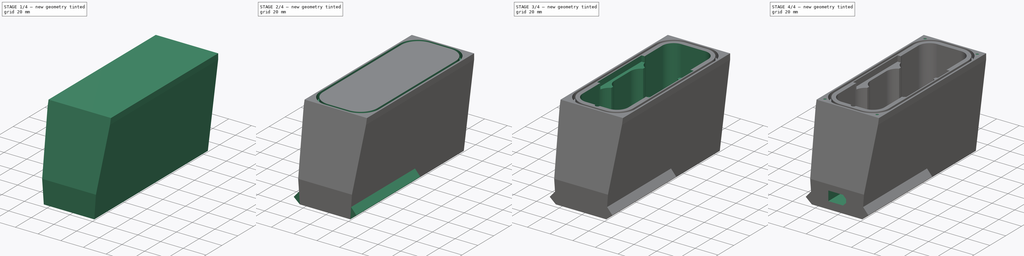
[diagram: build sequence overview — one tinted view per stage of 4, left to right]
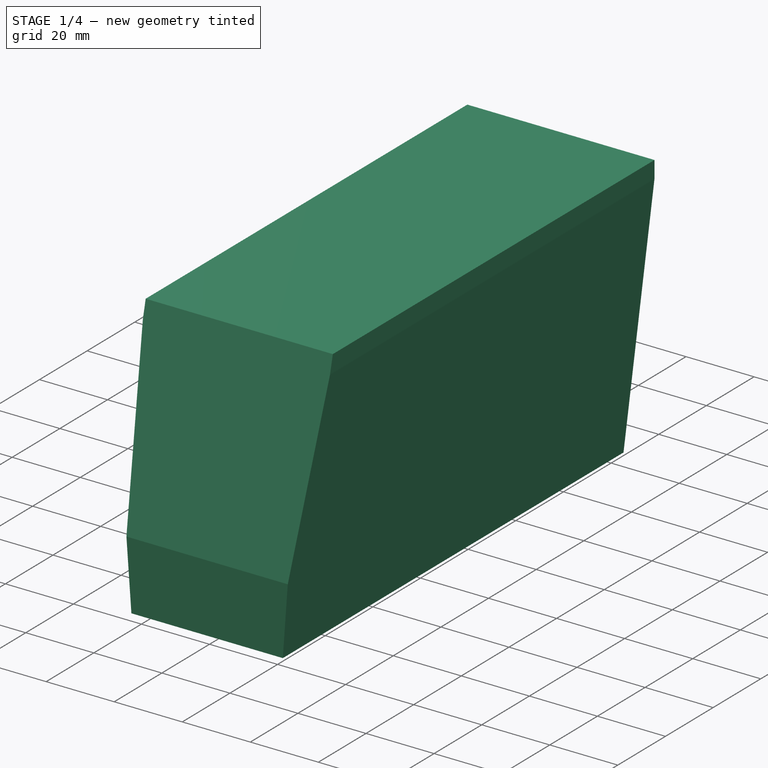
[diagram: stage 1 of 4 — iso view after this stage's code; geometry added in this stage tinted green]
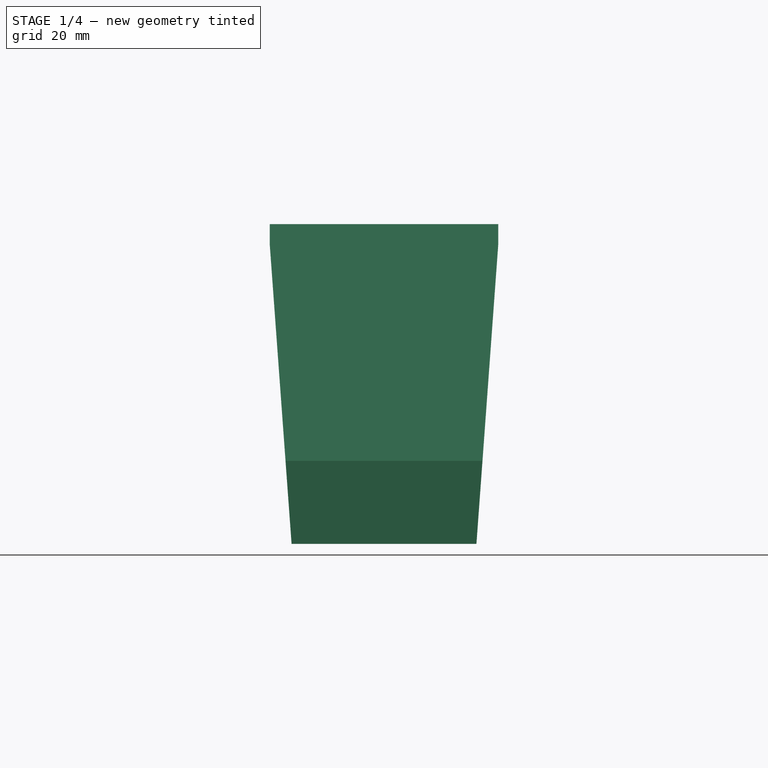
[diagram: stage 1 of 4 — front view after this stage's code; geometry added in this stage tinted green]
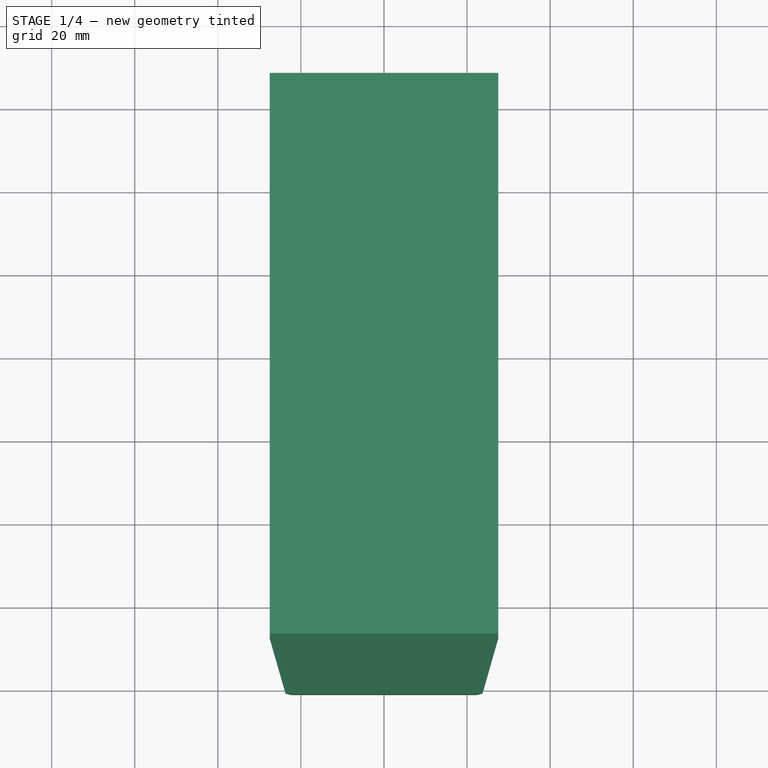
[diagram: stage 1 of 4 — top view after this stage's code; geometry added in this stage tinted green]
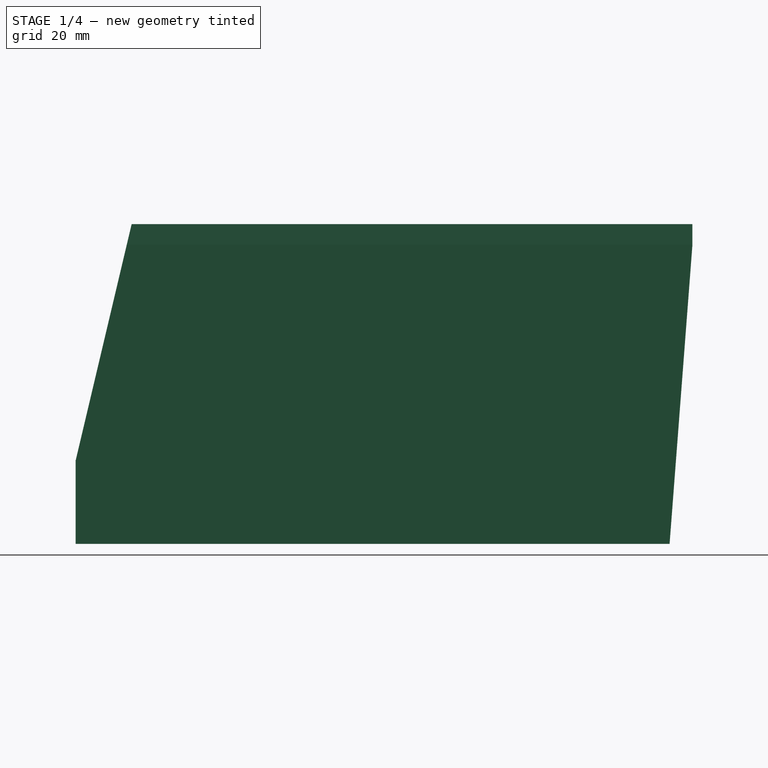
[diagram: stage 1 of 4 — right view after this stage's code; geometry added in this stage tinted green]
FCSTD DOCUMENT  (FreeCAD 1.1R14555 (Git shallow))
Label: Li-Ion battery pack for bike_SB
License: All rights reserved
LicenseURL: https://en.wikipedia.org/wiki/All_rights_reserved
objects: Sketcher::SketchObject×10, PartDesign::Pocket×5, PartDesign::Pad×4, App::Point×2, PartDesign::Body×2, PartDesign::Mirrored×2, PartDesign::Boolean×1, PartDesign::Hole×1
note: 58 computed .brp shape members not serialized (recipe doc carries the construction recipe); baked Part::Feature solids carry a one-line shape summary decoded from their .brp

FEATURE [App::Point] Origin001
  Role = Origin
FEATURE [Sketcher::SketchObject] Sketch
  ArcFitTolerance = 1e-06
  AttachmentSupport = -> [Origin]
  ExternalTypes = [0]
  FullyConstrained = true
  MakeInternals = false
  MapMode = 5
  Placement = pos=(0,0,0) rot=(1,0,0;1.5708rad)
  sketch-geometry (6):
    g0: LineSegment StartX=-27.5 StartY=0 StartZ=0 EndX=-22.25 EndY=-72 EndZ=0
    g1: LineSegment StartX=-22.25 StartY=-72 StartZ=0 EndX=22.25 EndY=-72 EndZ=0
    g2: LineSegment StartX=22.25 StartY=-72 StartZ=0 EndX=27.5 EndY=0 EndZ=0
    g3: LineSegment StartX=27.5 StartY=0 StartZ=0 EndX=27.5 EndY=5 EndZ=0
    g4: LineSegment StartX=27.5 StartY=5 StartZ=0 EndX=-27.5 EndY=5 EndZ=0
    g5: LineSegment StartX=-27.5 StartY=5 StartZ=0 EndX=-27.5 EndY=0 EndZ=0
  constraints (16):
    c: Coincident(g0,g1)
    c: Coincident(g1,g2)
    c: Symmetric(g2,g0,g-2)
    c: Symmetric(g1,g0,g-2)
    c: DistanceX(g1,g1) = 44.5
    c: DistanceY(g1,g2) = 72
    c: PointOnObject(g2,g-1)
    c: Coincident(g2,g3)
    c: Vertical(g3)
    c: Coincident(g3,g4)
    c: Horizontal(g4)
    c: Coincident(g4,g5)
    c: Coincident(g5,g0)
    c: Vertical(g5)
    c: DistanceX(g4,g4) = 55
    c: DistanceY(g3,g3) = 5
FEATURE [PartDesign::Pad] Pad
  Direction = (0,-1,2e-16)
  Length = 201
  Length2 = 10
  Profile = -> Sketch
  ReferenceAxis = -> Sketch [N_Axis]
  Refine = true
  SideType = 2
  Suppressed = false
  Type = 0
  Type2 = 0
FEATURE [PartDesign::Body] Body
  AllowCompound = false
  Group = -> [Sketch,Pad]
  Origin = -> Origin
  Tip = -> Pad
FEATURE [Sketcher::SketchObject] Sketch001
  ArcFitTolerance = 1e-06
  ExternalTypes = [0]
  FullyConstrained = true
  MakeInternals = false
  MapMode = 5
  Placement = pos=(0,0,0) rot=(0.57735,0.57735,0.57735;2.0944rad)
  sketch-geometry (6):
    g0: LineSegment StartX=-67.5 StartY=5 StartZ=0 EndX=-81 EndY=-52 EndZ=0
    g1: LineSegment StartX=-81 StartY=-52 StartZ=0 EndX=-81 EndY=-72 EndZ=0
    g2: LineSegment StartX=-81 StartY=-72 StartZ=0 EndX=62 EndY=-72 EndZ=0
    g3: LineSegment StartX=62 StartY=-72 StartZ=0 EndX=67.5 EndY=0 EndZ=0
    g4: LineSegment StartX=67.5 StartY=0 StartZ=0 EndX=67.5 EndY=5 EndZ=0
    g5: LineSegment StartX=67.5 StartY=5 StartZ=0 EndX=-67.5 EndY=5 EndZ=0
  constraints (18):
    c: Coincident(g0,g1)
    c: Vertical(g1)
    c: Coincident(g1,g2)
    c: Horizontal(g2)
    c: Coincident(g2,g3)
    c: PointOnObject(g3,g-1)
    c: Coincident(g3,g4)
    c: Coincident(g4,g5)
    c: Coincident(g5,g0)
    c: Horizontal(g5)
    c: DistanceX(g5,g5) = 135
    c: Vertical(g4)
    c: DistanceY(g4,g4) = 5
    c: Distance(g4,g-2) = 67.5
    c: Distance(g3,g2) = 72
    c: DistanceX(g2,g2) = 143
    c: DistanceY(g1,g1) = 20
    c: Distance(g2,g-2) = 62
FEATURE [App::Point] Origin003
  Role = Origin
FEATURE [PartDesign::Pad] Pad001
  Direction = (1,0,0)
  Length = 60
  Length2 = 10
  Placement = pos=(0,0,0) rot=(0.57735,0.57735,0.57735;2.0944rad)
  Profile = -> Sketch001
  ReferenceAxis = -> Sketch001 [N_Axis]
  Refine = true
  SideType = 2
  Suppressed = false
  Type = 0
  Type2 = 0
FEATURE [PartDesign::Boolean] Boolean
  BaseFeature = -> Pad001
  Group = -> [Body]
  Suppressed = false
  Type = 2
  UsePlacement = true
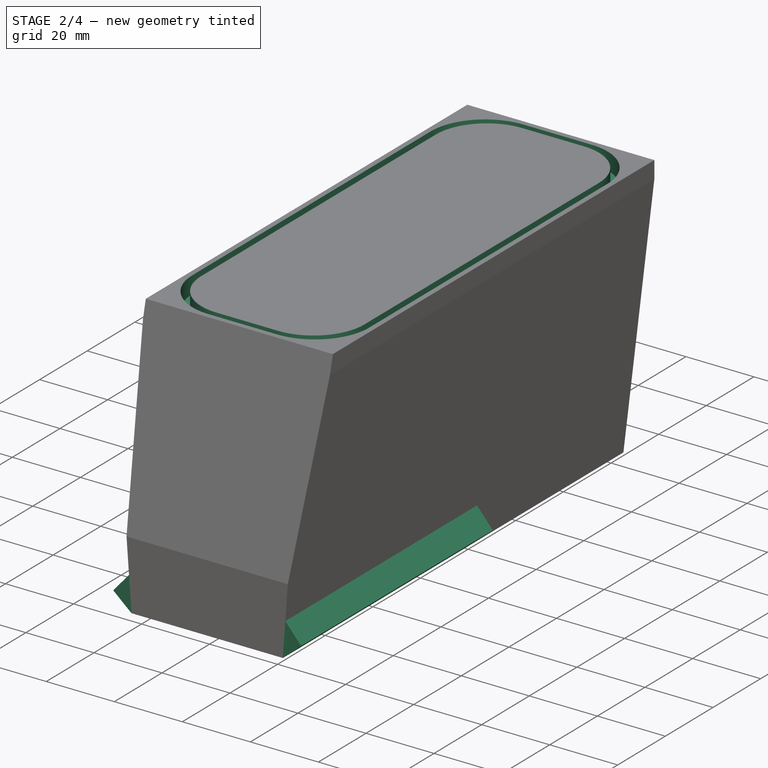
[diagram: stage 2 of 4 — iso view after this stage's code; geometry added in this stage tinted green]
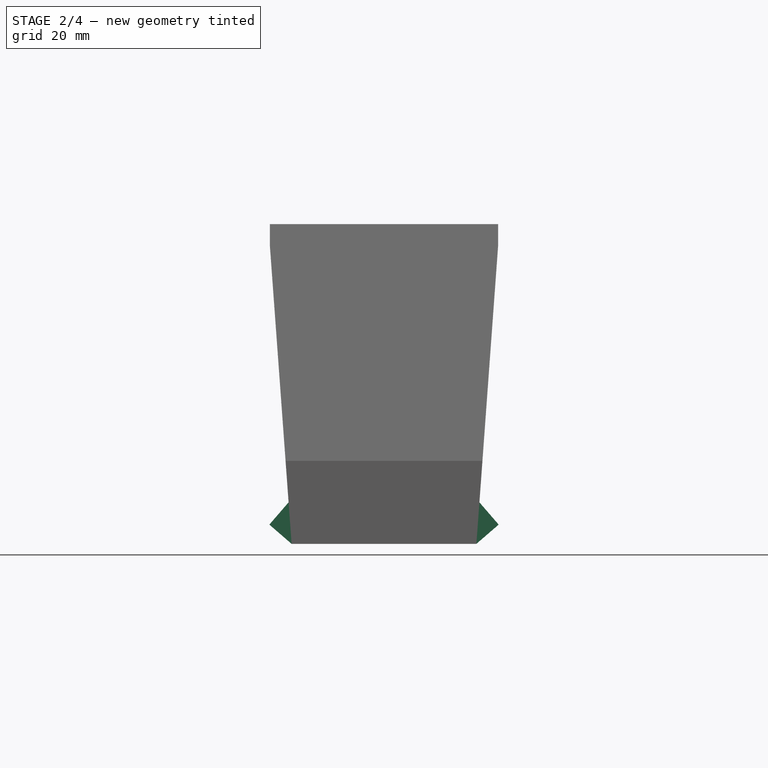
[diagram: stage 2 of 4 — front view after this stage's code; geometry added in this stage tinted green]
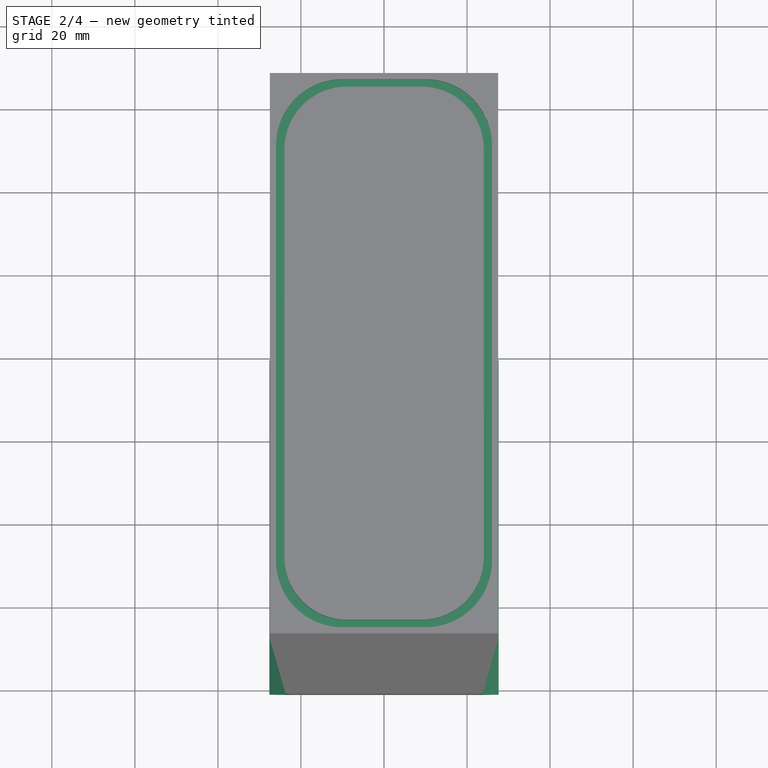
[diagram: stage 2 of 4 — top view after this stage's code; geometry added in this stage tinted green]
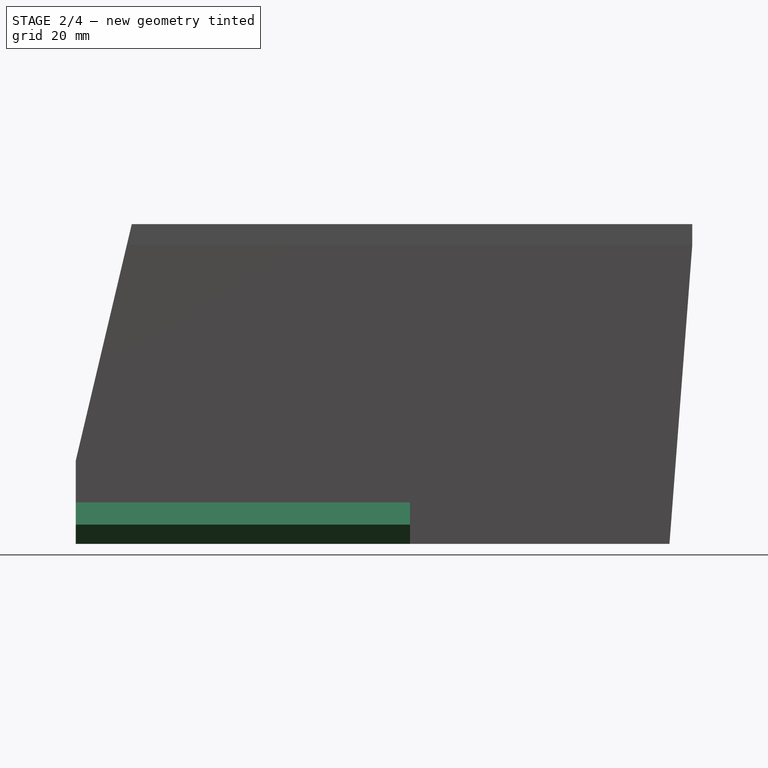
[diagram: stage 2 of 4 — right view after this stage's code; geometry added in this stage tinted green]
FEATURE [Sketcher::SketchObject] Sketch002
  ArcFitTolerance = 1e-06
  AttachmentSupport = -> [Boolean]
  ExternalTypes = [0]
  FullyConstrained = false
  MakeInternals = false
  MapMode = 5
  Placement = pos=(0,0,5) rot=(0,0,1;0rad)
  sketch-geometry (20):
    g0: LineSegment StartX=-26 StartY=50 StartZ=0 EndX=-26 EndY=-50 EndZ=0
    g1: LineSegment StartX=-10 StartY=-66 StartZ=0 EndX=10 EndY=-66 EndZ=0
    g2: LineSegment StartX=26 StartY=-50 StartZ=0 EndX=26 EndY=50 EndZ=0
    g3: LineSegment StartX=10 StartY=66 StartZ=0 EndX=-10 EndY=66 EndZ=0
    g4: ArcOfCircle CenterX=-10 CenterY=50 CenterZ=0 NormalX=0 NormalY=0 NormalZ=1 AngleXU=0 Radius=16 StartAngle=1.5708 EndAngle=3.14159
    g5: ArcOfCircle CenterX=-10 CenterY=-50 CenterZ=0 NormalX=0 NormalY=0 NormalZ=1 AngleXU=0 Radius=16 StartAngle=3.14159 EndAngle=4.71239
    g6: ArcOfCircle CenterX=10 CenterY=-50 CenterZ=0 NormalX=0 NormalY=0 NormalZ=1 AngleXU=0 Radius=16 StartAngle=4.71239 EndAngle=6.28319
    g7: ArcOfCircle CenterX=10 CenterY=50 CenterZ=0 NormalX=0 NormalY=0 NormalZ=1 AngleXU=0 Radius=16 StartAngle=0 EndAngle=1.5708
    g8: GeomPoint [constr] X=-26 Y=66 Z=0
    g9: GeomPoint [constr] X=26 Y=-66 Z=0
    g10: LineSegment StartX=-23.9788 StartY=49.2 StartZ=0 EndX=-23.9788 EndY=-49.2 EndZ=0
    g11: LineSegment StartX=-8.97877 StartY=-64.2 StartZ=0 EndX=9.02123 EndY=-64.2 EndZ=0
    g12: LineSegment StartX=24.0212 StartY=-49.2 StartZ=0 EndX=24.0212 EndY=49.2 EndZ=0
    g13: LineSegment StartX=9.02123 StartY=64.2 StartZ=0 EndX=-8.97877 EndY=64.2 EndZ=0
    g14: ArcOfCircle CenterX=-8.97877 CenterY=49.2 CenterZ=0 NormalX=0 NormalY=0 NormalZ=1 AngleXU=0 Radius=15 StartAngle=1.5708 EndAngle=3.14159
    g15: ArcOfCircle CenterX=-8.97877 CenterY=-49.2 CenterZ=0 NormalX=0 NormalY=0 NormalZ=1 AngleXU=0 Radius=15 StartAngle=3.14159 EndAngle=4.71239
    g16: ArcOfCircle CenterX=9.02123 CenterY=-49.2 CenterZ=0 NormalX=0 NormalY=0 NormalZ=1 AngleXU=0 Radius=15 StartAngle=4.71239 EndAngle=6.28319
    g17: ArcOfCircle CenterX=9.02123 CenterY=49.2 CenterZ=0 NormalX=0 NormalY=0 NormalZ=1 AngleXU=0 Radius=15 StartAngle=0 EndAngle=1.5708
    g18: GeomPoint [constr] X=-23.9788 Y=64.2 Z=0
    g19: GeomPoint [constr] X=24.0212 Y=-64.2 Z=0
  constraints (46):
    c: Tangent(g0,g4) = -1.5708
    c: Tangent(g0,g5) = -1.5708
    c: Tangent(g1,g5) = -1.5708
    c: Tangent(g1,g6) = -1.5708
    c: Tangent(g2,g6) = -1.5708
    c: Tangent(g2,g7) = -1.5708
    c: Tangent(g3,g7) = -1.5708
    c: Tangent(g3,g4) = -1.5708
    c: Vertical(g0)
    c: Vertical(g2)
    c: Horizontal(g1)
    c: Horizontal(g3)
    c: Equal(g4,g5)
    c: PointOnObject(g8,g0)
    c: PointOnObject(g8,g3)
    c: PointOnObject(g9,g1)
    c: PointOnObject(g9,g2)
    c: Radius(g5) = 16
    c: Symmetric(g5,g6,g-2)
    c: Distance(g2,g0) = 52
    c: Distance(g3,g1) = 132
    c: Distance(g-1,g3) = 66
    c: Equal(g7,g4)
    c: Tangent(g10,g14) = -1.5708
    c: Tangent(g10,g15) = -1.5708
    c: Tangent(g11,g15) = -1.5708
    c: Tangent(g11,g16) = -1.5708
    c: Tangent(g12,g16) = -1.5708
    c: Tangent(g12,g17) = -1.5708
    c: Tangent(g13,g17) = -1.5708
    c: Tangent(g13,g14) = -1.5708
    c: Vertical(g10)
    c: Vertical(g12)
    c: Horizontal(g11)
    c: Horizontal(g13)
    c: Equal(g14,g15)
    c: Equal(g15,g16)
    c: Equal(g16,g17)
    c: PointOnObject(g18,g10)
    c: PointOnObject(g18,g13)
    c: PointOnObject(g19,g11)
    c: PointOnObject(g19,g12)
    c: Radius(g15) = 15
    c: Distance(g10,g12) = 48
    c: Distance(g13,g3) = 1.8
    c: Distance(g1,g11) = 1.8
FEATURE [PartDesign::Pocket] Pocket
  BaseFeature = -> Boolean
  Direction = (0,0,-1)
  Length = 5
  Length2 = 5
  Profile = -> Sketch002
  ReferenceAxis = -> Sketch002 [N_Axis]
  Refine = true
  SideType = 0
  Suppressed = false
  Type = 0
  Type2 = 0
FEATURE [Sketcher::SketchObject] Sketch003
  ArcFitTolerance = 1e-06
  AttachmentSupport = -> [Pocket]
  ExternalGeometry = -> [Pocket]
  ExternalTypes = [0]
  FullyConstrained = true
  MakeInternals = false
  MapMode = 5
  Placement = pos=(0,-81,5.75e-14) rot=(1,0,0;1.5708rad)
  sketch-geometry (3):
    g0: LineSegment StartX=-22.25 StartY=-72 StartZ=0 EndX=-27.6146 EndY=-67.3646 EndZ=0
    g1: LineSegment StartX=-27.6146 StartY=-67.3646 StartZ=0 EndX=-22.9792 EndY=-62 EndZ=0
    g2: LineSegment StartX=-22.9792 StartY=-62 StartZ=0 EndX=-22.25 EndY=-72 EndZ=0
  constraints (7):
    c: Coincident(g-3,g0)
    c: Coincident(g0,g1)
    c: Symmetric(g-3,g-3,g1)
    c: Coincident(g1,g2)
    c: Coincident(g2,g0)
    c: Perpendicular(g0,g1)
    c: Angle(g2,g0) = 0.785398
FEATURE [PartDesign::Pad] Pad002
  BaseFeature = -> Pocket
  Direction = (0,-1,2e-16)
  Length = 80.5
  Length2 = 10
  Profile = -> Sketch003
  ReferenceAxis = -> Sketch003 [N_Axis]
  Refine = true
  Reversed = true
  SideType = 0
  Suppressed = false
  Type = 0
  Type2 = 0
FEATURE [PartDesign::Mirrored] Mirrored
  BaseFeature = -> Pad002
  MirrorPlane = -> Sketch003 [V_Axis]
  Originals = -> [Pad002]
  Refine = true
  Suppressed = false
  TransformMode = 0
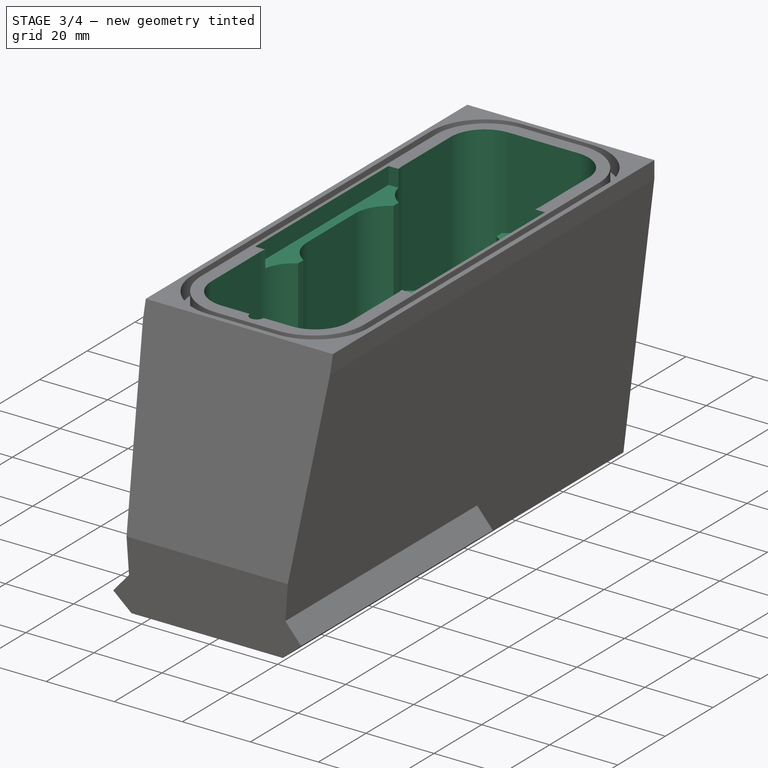
[diagram: stage 3 of 4 — iso view after this stage's code; geometry added in this stage tinted green]
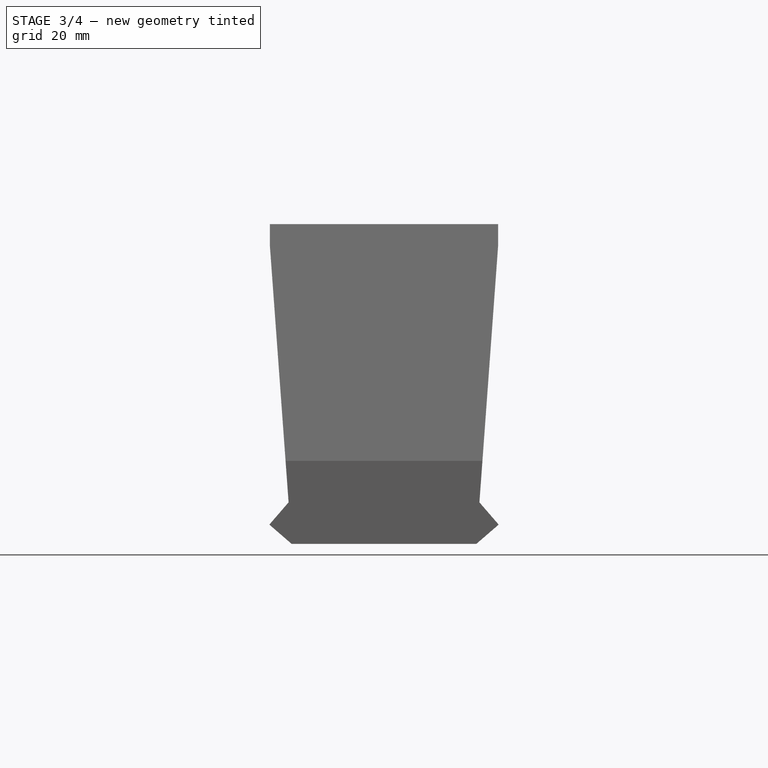
[diagram: stage 3 of 4 — front view after this stage's code; geometry added in this stage tinted green]
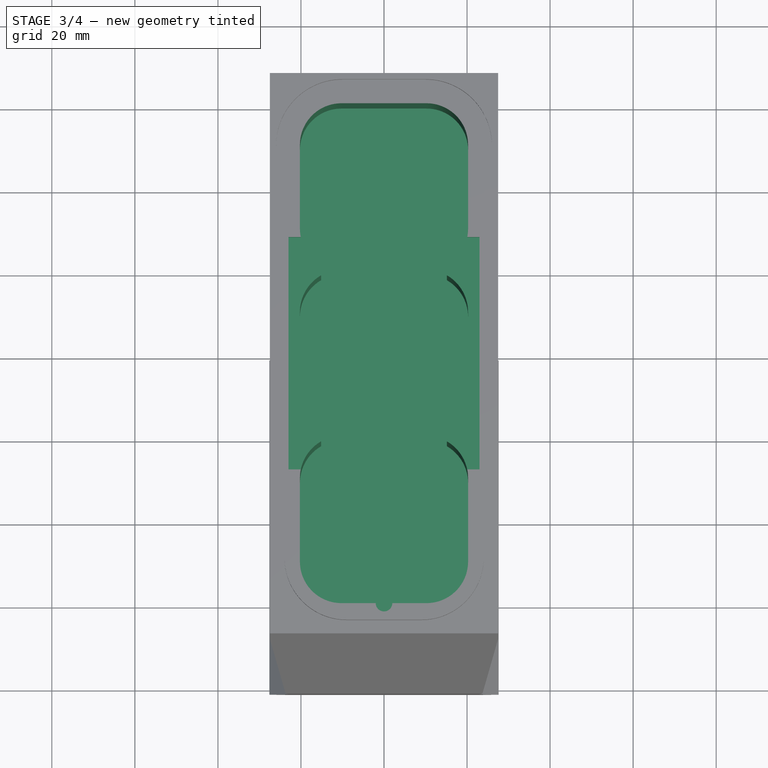
[diagram: stage 3 of 4 — top view after this stage's code; geometry added in this stage tinted green]
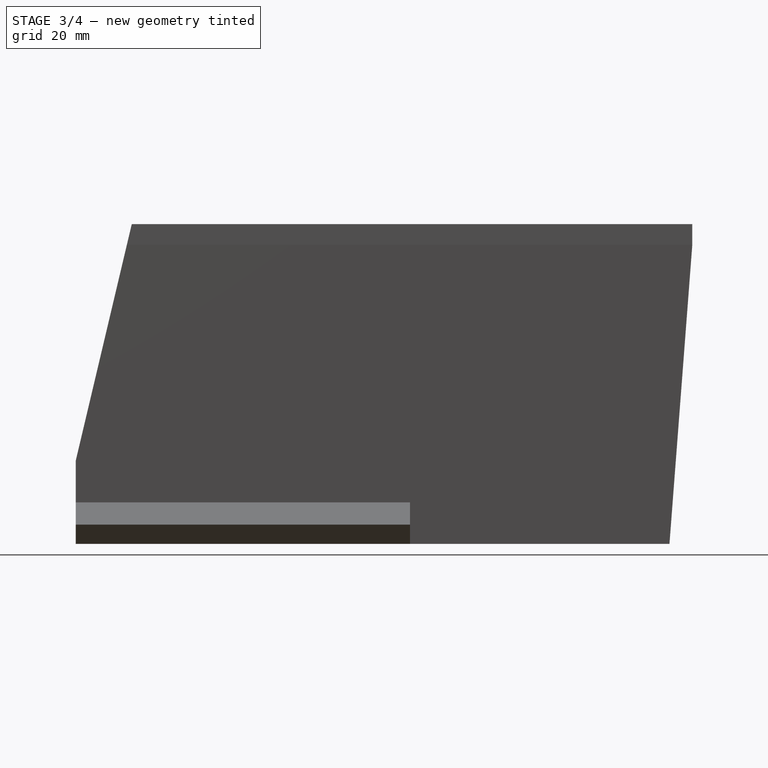
[diagram: stage 3 of 4 — right view after this stage's code; geometry added in this stage tinted green]
FEATURE [Sketcher::SketchObject] Sketch004
  ArcFitTolerance = 1e-06
  AttachmentSupport = -> [Mirrored]
  ExternalTypes = [0]
  FullyConstrained = true
  MakeInternals = false
  MapMode = 5
  Placement = pos=(0,0,5) rot=(0,0,1;0rad)
  sketch-geometry (12):
    g0: LineSegment StartX=-20.25 StartY=50.2 StartZ=0 EndX=-20.25 EndY=-50.2 EndZ=0
    g1: LineSegment StartX=-10.25 StartY=-60.2 StartZ=0 EndX=-2 EndY=-60.2 EndZ=0
    g2: LineSegment StartX=20.25 StartY=-50.2 StartZ=0 EndX=20.25 EndY=50.2 EndZ=0
    g3: LineSegment StartX=10.25 StartY=60.2 StartZ=0 EndX=-10.25 EndY=60.2 EndZ=0
    g4: ArcOfCircle CenterX=-10.25 CenterY=50.2 CenterZ=0 NormalX=0 NormalY=0 NormalZ=1 AngleXU=0 Radius=10 StartAngle=1.5708 EndAngle=3.14159
    g5: ArcOfCircle CenterX=-10.25 CenterY=-50.2 CenterZ=0 NormalX=0 NormalY=0 NormalZ=1 AngleXU=0 Radius=10 StartAngle=3.14159 EndAngle=4.71239
    g6: ArcOfCircle CenterX=10.25 CenterY=-50.2 CenterZ=0 NormalX=0 NormalY=0 NormalZ=1 AngleXU=0 Radius=10 StartAngle=4.71239 EndAngle=6.28319
    g7: ArcOfCircle CenterX=10.25 CenterY=50.2 CenterZ=0 NormalX=0 NormalY=0 NormalZ=1 AngleXU=0 Radius=10 StartAngle=0 EndAngle=1.5708
    g8: GeomPoint [constr] X=-20.25 Y=60.2 Z=0
    g9: GeomPoint [constr] X=20.25 Y=-60.2 Z=0
    g10: ArcOfCircle CenterX=9e-16 CenterY=-60.2 CenterZ=0 NormalX=0 NormalY=0 NormalZ=1 AngleXU=0 Radius=2 StartAngle=3.14159 EndAngle=6.28319
    g11: LineSegment StartX=2 StartY=-60.2 StartZ=0 EndX=10.25 EndY=-60.2 EndZ=0
  constraints (28):
    c: Tangent(g0,g4) = -1.5708
    c: Tangent(g0,g5) = -1.5708
    c: Tangent(g1,g5) = -1.5708
    c: Tangent(g11,g6) = -1.5708
    c: Tangent(g2,g6) = -1.5708
    c: Tangent(g2,g7) = -1.5708
    c: Tangent(g3,g7) = -1.5708
    c: Tangent(g3,g4) = -1.5708
    c: Vertical(g0)
    c: Vertical(g2)
    c: Horizontal(g3)
    c: Equal(g4,g5)
    c: PointOnObject(g8,g0)
    c: PointOnObject(g8,g3)
    c: PointOnObject(g9,g2)
    c: Radius(g5) = 10
    c: Distance(g2,g0) = 40.5
    c: Symmetric(g3,g11,g-1)
    c: Distance(g1,g-1) = 60.2
    c: Symmetric(g2,g0,g-2)
    c: Symmetric(g1,g11,g10)
    c: Horizontal(g1)
    c: Horizontal(g11)
    c: PointOnObject(g9,g11)
    c: Coincident(g10,g11)
    c: Coincident(g10,g1)
    c: Radius(g10) = 2
    c: Horizontal(g10,g1)
FEATURE [PartDesign::Pocket] Pocket001
  BaseFeature = -> Mirrored
  Direction = (0,0,-1)
  Length = 73
  Length2 = 5
  Profile = -> Sketch004
  ReferenceAxis = -> Sketch004 [N_Axis]
  Refine = true
  SideType = 0
  Suppressed = false
  Type = 0
  Type2 = 0
FEATURE [Sketcher::SketchObject] Sketch005
  ArcFitTolerance = 1e-06
  AttachmentSupport = -> [Pocket001]
  ExternalGeometry = -> [Pocket001]
  ExternalTypes = [0]
  FullyConstrained = true
  MakeInternals = false
  MapMode = 5
  Placement = pos=(0,0,5) rot=(0,0,1;0rad)
  sketch-geometry (9):
    g0: ArcOfCircle CenterX=-10.0213 CenterY=30 CenterZ=0 NormalX=0 NormalY=0 NormalZ=1 AngleXU=0 Radius=10.2287 StartAngle=3.14159 EndAngle=4.18717
    g1: LineSegment StartX=-15.15 StartY=21.15 StartZ=0 EndX=-15.15 EndY=18.85 EndZ=0
    g2: LineSegment [constr] StartX=-15.15 StartY=20 StartZ=0 EndX=-20.25 EndY=20 EndZ=0
    g3: ArcOfCircle CenterX=-10.0213 CenterY=10 CenterZ=0 NormalX=0 NormalY=0 NormalZ=1 AngleXU=0 Radius=10.2287 StartAngle=2.09601 EndAngle=3.14159
    g4: LineSegment StartX=-20.25 StartY=30 StartZ=0 EndX=-20.25 EndY=10 EndZ=0
    g5: LineSegment StartX=20.25 StartY=30 StartZ=0 EndX=20.25 EndY=10 EndZ=0
    g6: ArcOfCircle CenterX=10.0213 CenterY=30 CenterZ=0 NormalX=0 NormalY=0 NormalZ=1 AngleXU=0 Radius=10.2287 StartAngle=5.23761 EndAngle=6.28319
    g7: LineSegment StartX=15.15 StartY=21.15 StartZ=0 EndX=15.15 EndY=18.85 EndZ=0
    g8: ArcOfCircle CenterX=10.0213 CenterY=10 CenterZ=0 NormalX=0 NormalY=0 NormalZ=1 AngleXU=0 Radius=10.2287 StartAngle=2e-16 EndAngle=1.04558
  constraints (24):
    c: Coincident(g1,g0)
    c: Vertical(g1)
    c: Tangent(g0,g-3) = -1.5708
    c: DistanceY(g1,g1) = 2.3
    c: Symmetric(g1,g1,g2)
    c: PointOnObject(g2,g-3)
    c: Equal(g0,g3)
    c: Symmetric(g0,g3,g2)
    c: Symmetric(g0,g3,g2)
    c: Tangent(g4,g0) = -1.5708
    c: Coincident(g4,g3)
    c: DistanceY(g4,g4) = 20
    c: DistanceX(g2,g2) = 5.1
    c: DistanceY(g0,g-3) = 20.2
    c: Equal(g0,g6)
    c: Symmetric(g0,g6,g-2)
    c: Symmetric(g0,g6,g-2)
    c: Symmetric(g1,g7,g-2)
    c: Symmetric(g1,g7,g-2)
    c: Equal(g3,g8)
    c: Symmetric(g3,g8,g-2)
    c: Symmetric(g3,g8,g-2)
    c: Symmetric(g4,g5,g-2)
    c: Symmetric(g4,g5,g-2)
FEATURE [PartDesign::Pad] Pad003
  BaseFeature = -> Pocket001
  Direction = (0,0,1)
  Length = 10
  Length2 = 10
  Profile = -> Sketch005
  ReferenceAxis = -> Sketch005 [N_Axis]
  Refine = true
  Reversed = true
  SideType = 0
  Suppressed = false
  Type = 3
  Type2 = 0
  UpToFace = -> Pocket001 [Face45]
FEATURE [PartDesign::Mirrored] Mirrored001
  BaseFeature = -> Pad003
  MirrorPlane = -> XZ_Plane001
  Originals = -> [Pad003]
  Refine = true
  Suppressed = false
  TransformMode = 0
FEATURE [Sketcher::SketchObject] Sketch006
  ArcFitTolerance = 1e-06
  AttachmentSupport = -> [Mirrored001]
  ExternalTypes = [0]
  FullyConstrained = true
  MakeInternals = false
  MapMode = 5
  Placement = pos=(0,0,5) rot=(0,0,1;0rad)
  sketch-geometry (5):
    g0: LineSegment StartX=-23 StartY=28 StartZ=0 EndX=-23 EndY=-28 EndZ=0
    g1: LineSegment StartX=-23 StartY=-28 StartZ=0 EndX=23 EndY=-28 EndZ=0
    g2: LineSegment StartX=23 StartY=-28 StartZ=0 EndX=23 EndY=28 EndZ=0
    g3: LineSegment StartX=23 StartY=28 StartZ=0 EndX=-23 EndY=28 EndZ=0
    g4: GeomPoint [constr] X=0 Y=0 Z=0
  constraints (12):
    c: Coincident(g0,g1)
    c: Coincident(g1,g2)
    c: Coincident(g2,g3)
    c: Coincident(g3,g0)
    c: Vertical(g0)
    c: Vertical(g2)
    c: Horizontal(g1)
    c: Horizontal(g3)
    c: Symmetric(g2,g0,g4)
    c: Coincident(g4,g-1)
    c: DistanceX(g3,g3) = 46
    c: DistanceY(g2,g2) = 56
FEATURE [PartDesign::Pocket] Pocket002
  BaseFeature = -> Mirrored001
  Direction = (0,0,-1)
  Length = 5
  Length2 = 5
  Profile = -> Sketch006
  ReferenceAxis = -> Sketch006 [N_Axis]
  Refine = true
  SideType = 0
  Suppressed = false
  Type = 0
  Type2 = 0
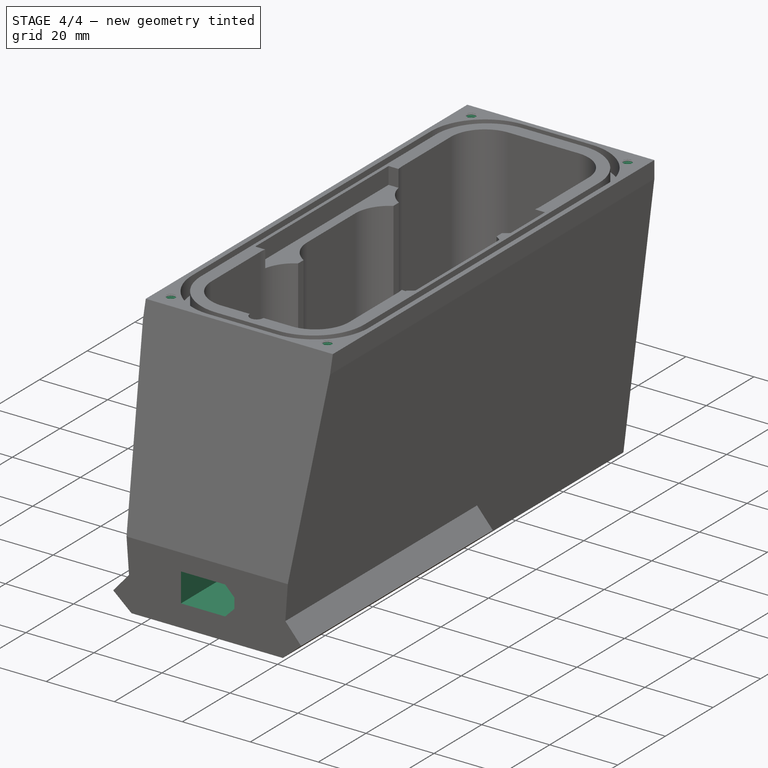
[diagram: stage 4 of 4 — iso view after this stage's code; geometry added in this stage tinted green]
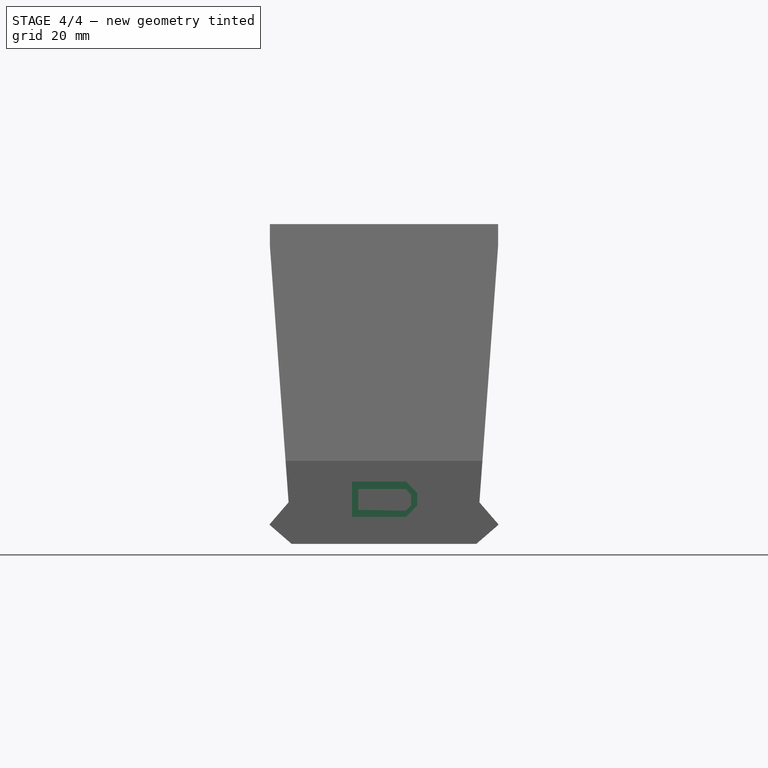
[diagram: stage 4 of 4 — front view after this stage's code; geometry added in this stage tinted green]
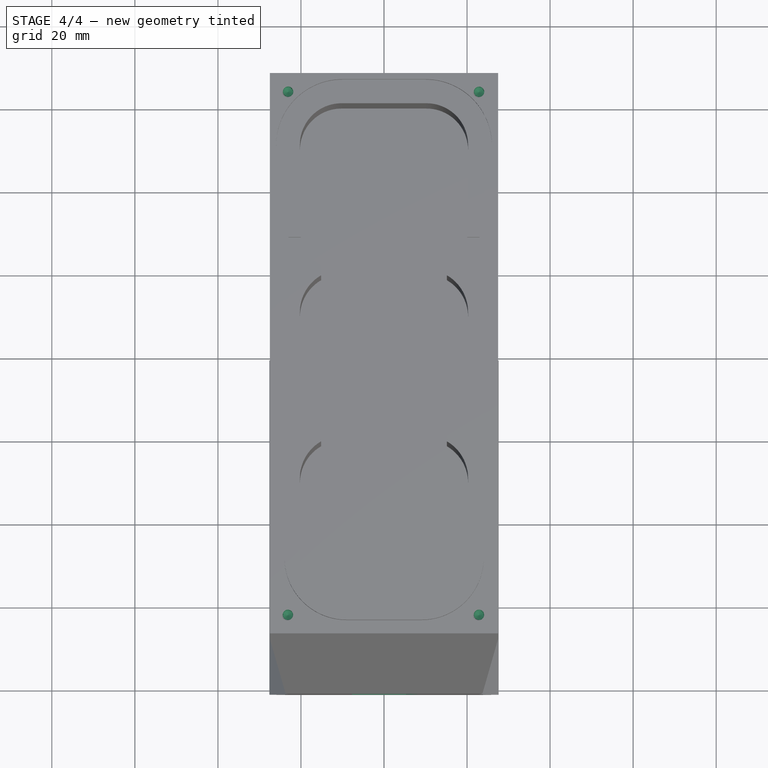
[diagram: stage 4 of 4 — top view after this stage's code; geometry added in this stage tinted green]
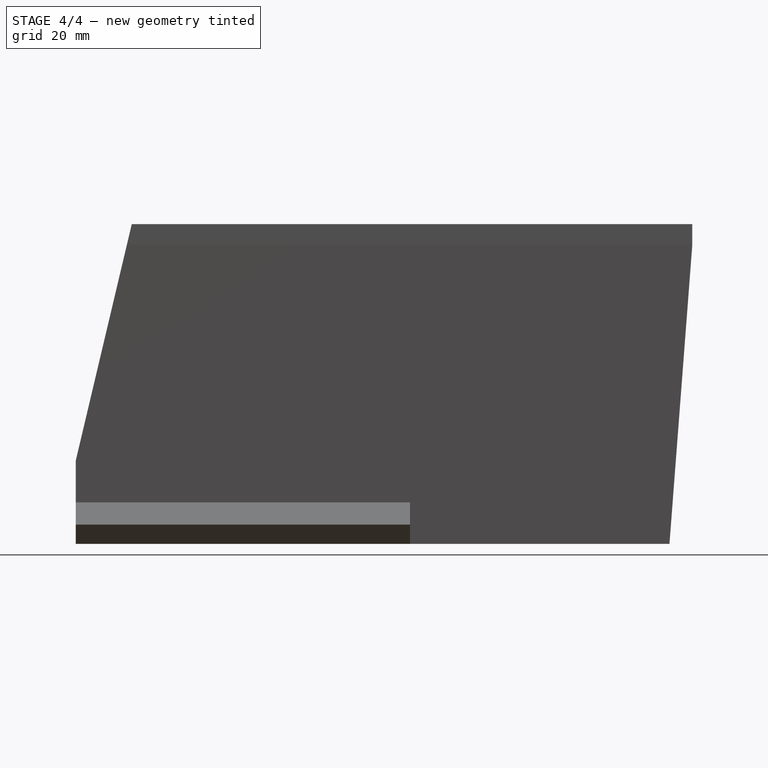
[diagram: stage 4 of 4 — right view after this stage's code; geometry added in this stage tinted green]
FEATURE [Sketcher::SketchObject] Sketch007
  ArcFitTolerance = 1e-06
  AttachmentSupport = -> [Pocket002]
  ExternalTypes = [0]
  FullyConstrained = true
  MakeInternals = false
  MapMode = 5
  Placement = pos=(0,-81,0) rot=(1,0,0;1.5708rad)
  sketch-geometry (7):
    g0: LineSegment StartX=-7.7 StartY=-65.5 StartZ=0 EndX=-7.7 EndY=-57 EndZ=0
    g1: LineSegment StartX=-7.7 StartY=-57 StartZ=0 EndX=5.3 EndY=-57 EndZ=0
    g2: LineSegment StartX=5.3 StartY=-57 StartZ=0 EndX=8 EndY=-59.75 EndZ=0
    g3: LineSegment StartX=8 StartY=-59.75 StartZ=0 EndX=8 EndY=-62.75 EndZ=0
    g4: LineSegment StartX=8 StartY=-62.75 StartZ=0 EndX=5.3 EndY=-65.5 EndZ=0
    g5: LineSegment StartX=5.3 StartY=-65.5 StartZ=0 EndX=-7.7 EndY=-65.5 EndZ=0
    g6: LineSegment [constr] StartX=-7.7 StartY=-61.25 StartZ=0 EndX=8 EndY=-61.25 EndZ=0
  constraints (20):
    c: Vertical(g0)
    c: Coincident(g0,g1)
    c: Horizontal(g1)
    c: Coincident(g1,g2)
    c: Coincident(g2,g3)
    c: Vertical(g3)
    c: Coincident(g3,g4)
    c: Coincident(g4,g5)
    c: Coincident(g5,g0)
    c: Horizontal(g5)
    c: DistanceY(g0,g0) = 8.5
    c: Equal(g2,g4)
    c: Symmetric(g0,g0,g6)
    c: Symmetric(g3,g3,g6)
    c: Horizontal(g6)
    c: DistanceX(g1,g1) = 13
    c: DistanceY(g3,g3) = 3
    c: DistanceX(g1,g2) = 2.7
    c: Distance(g0,g-2) = 7.7
    c: Distance(g0,g-1) = 57
FEATURE [PartDesign::Pocket] Pocket003
  BaseFeature = -> Pocket002
  Direction = (0,1,-2e-16)
  Length = 16.6
  Length2 = 5
  Profile = -> Sketch007
  ReferenceAxis = -> Sketch007 [N_Axis]
  Refine = true
  SideType = 0
  Suppressed = false
  Type = 0
  Type2 = 0
FEATURE [Sketcher::SketchObject] Sketch008
  ArcFitTolerance = 1e-06
  AttachmentSupport = -> [Pocket003]
  ExternalGeometry = -> [Sketch007]
  ExternalTypes = [0,0,0,0,0,0]
  FullyConstrained = false
  MakeInternals = false
  MapMode = 5
  Placement = pos=(0,-64.4,0) rot=(1,0,0;1.5708rad)
  sketch-geometry (6):
    g0: LineSegment StartX=-6.20302 StartY=-58.8 StartZ=0 EndX=5.29698 EndY=-58.8 EndZ=0
    g1: LineSegment StartX=5.29698 StartY=-58.8 StartZ=0 EndX=6.51048 EndY=-60.1776 EndZ=0
    g2: LineSegment StartX=6.51048 StartY=-60.1776 StartZ=0 EndX=6.5387 EndY=-62.7776 EndZ=0
    g3: LineSegment StartX=6.5387 StartY=-62.7776 StartZ=0 EndX=5.18475 EndY=-64.0174 EndZ=0
    g4: LineSegment StartX=5.18475 StartY=-64.0174 StartZ=0 EndX=-6.20302 EndY=-63.8 EndZ=0
    g5: LineSegment StartX=-6.20302 StartY=-63.8 StartZ=0 EndX=-6.20302 EndY=-58.8 EndZ=0
  constraints (13):
    c: Coincident(g0,g1)
    c: Coincident(g0,g5)
    c: Coincident(g1,g2)
    c: Coincident(g2,g3)
    c: Coincident(g3,g4)
    c: Coincident(g4,g5)
    c: DistanceY(g2,g2) = 2.6
    c: Equal(g3,g1)
    c: Horizontal(g0)
    c: DistanceX(g0,g0) = 11.5
    c: Vertical(g5)
    c: DistanceY(g5,g5) = 5
    c: Distance(g0,g-3) = 1.8
FEATURE [PartDesign::Pocket] Pocket004
  BaseFeature = -> Pocket003
  Direction = (0,1,-2e-16)
  Length = 5
  Length2 = 5
  Profile = -> Sketch008
  ReferenceAxis = -> Sketch008 [N_Axis]
  Refine = true
  SideType = 0
  Suppressed = false
  Type = 0
  Type2 = 0
FEATURE [Sketcher::SketchObject] Sketch009
  ArcFitTolerance = 1e-06
  AttachmentSupport = -> [Pocket004]
  ExternalTypes = [0]
  FullyConstrained = false
  MakeInternals = false
  MapMode = 5
  Placement = pos=(0,0,5) rot=(0,0,1;0rad)
  sketch-geometry (4):
    g0: Circle CenterX=22.8616 CenterY=-63.006 CenterZ=0 NormalX=0 NormalY=0 NormalZ=1 AngleXU=0 Radius=1.5
    g1: Circle CenterX=-23.1523 CenterY=-63.0113 CenterZ=0 NormalX=0 NormalY=0 NormalZ=1 AngleXU=0 Radius=1.5
    g2: Circle CenterX=-23.1005 CenterY=63.0102 CenterZ=0 NormalX=0 NormalY=0 NormalZ=1 AngleXU=0 Radius=1.5
    g3: Circle CenterX=22.885 CenterY=62.9756 CenterZ=0 NormalX=0 NormalY=0 NormalZ=1 AngleXU=0 Radius=1.5
  constraints (4):
    c: Diameter(g0) = 3
    c: Equal(g0,g1)
    c: Equal(g1,g2)
    c: Equal(g2,g3)
FEATURE [PartDesign::Hole] Hole
  BaseFeature = -> Pocket004
  BaseProfileType = 7
  CustomThreadClearance = 0
  Depth = 5
  DepthType = 0
  Diameter = 2.52
  DrillForDepth = false
  DrillPoint = 1
  DrillPointAngle = 118
  HoleCutCountersinkAngle = 90
  HoleCutCustomValues = false
  HoleCutDepth = 0
  HoleCutDiameter = 0
  HoleCutType = 0
  ModelThread = true
  Profile = -> Sketch009
  Refine = true
  Suppressed = false
  Tapered = true
  TaperedAngle = 88.21
  ThreadClass = 0
  ThreadDepth = 5
  ThreadDepthType = 0
  ThreadDiameter = 3
  ThreadDirection = 0
  ThreadFit = 0
  ThreadSize = 9
  ThreadType = 1
  Threaded = true
  UseCustomThreadClearance = false
FEATURE [PartDesign::Body] Body001
  AllowCompound = true
  Group = -> [Sketch001,Pad001,Boolean,Sketch002,Pocket,Sketch003,Pad002,Mirrored,Sketch004,Pocket001,Sketch005,Pad003,Mirrored001,Sketch006,Pocket002,Sketch007,Pocket003,Sketch008,Pocket004,Sketch009,Hole]
  Origin = -> Origin002
  Tip = -> Hole
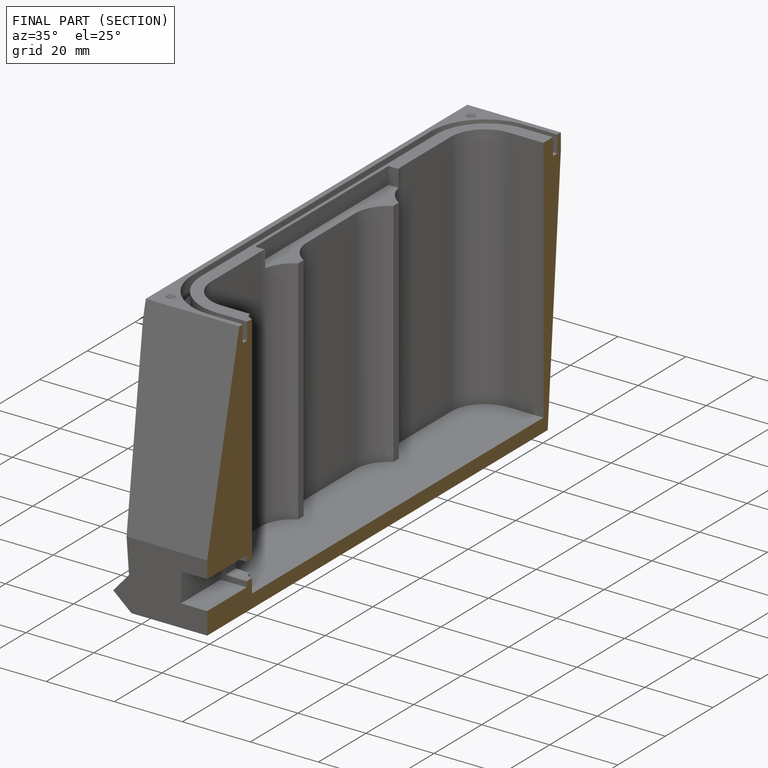
[diagram: finished part — half-section view (interior)]
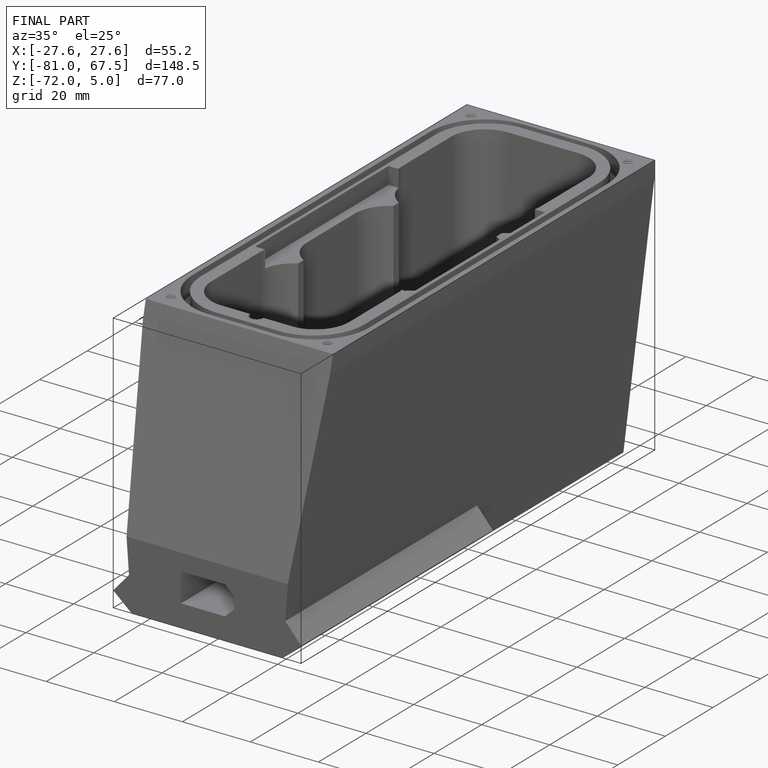
[diagram: finished part — iso view with bounding-box wireframe]
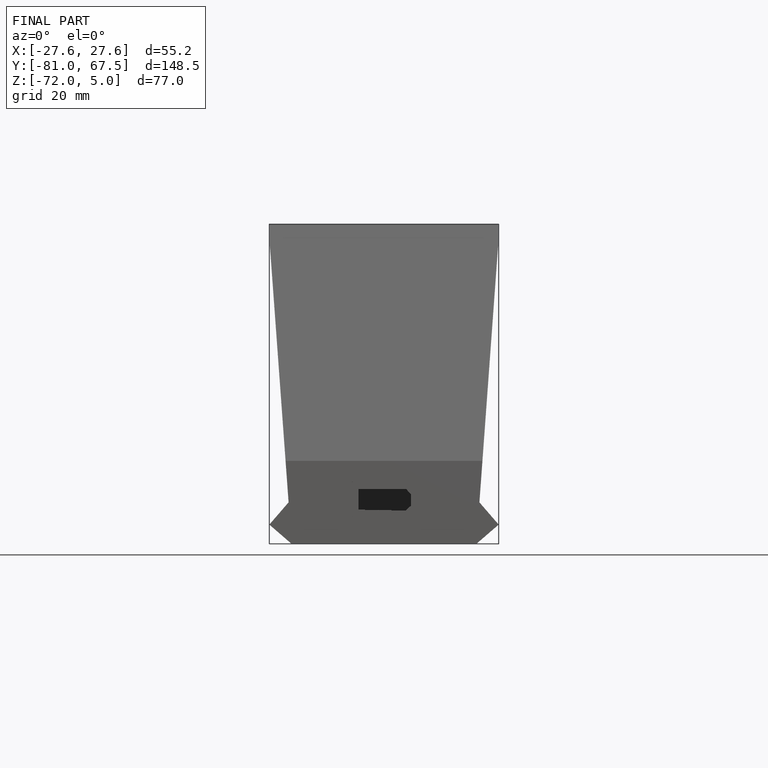
[diagram: finished part — front view with bounding-box wireframe]
